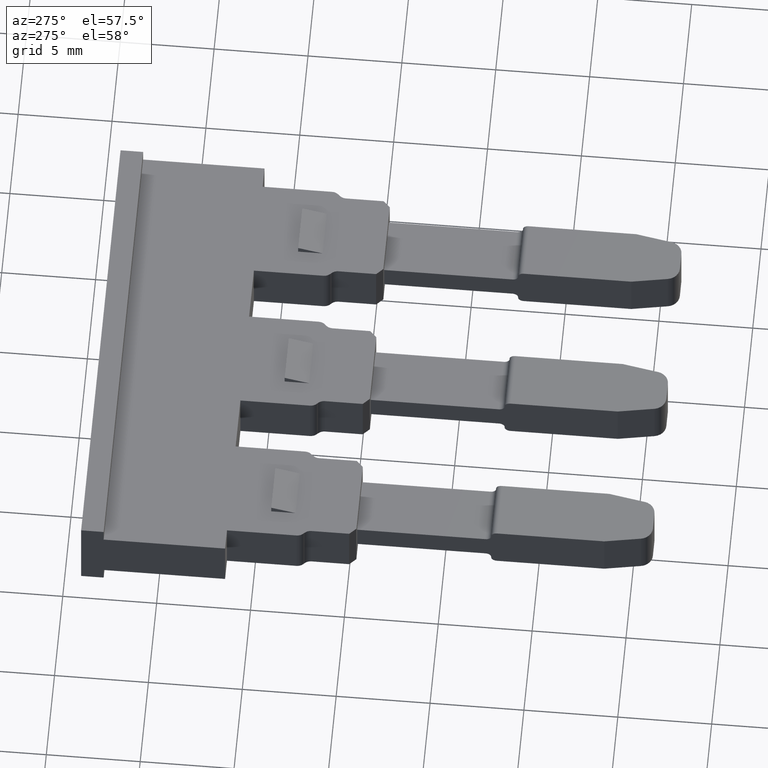
[diagram: clean part render]
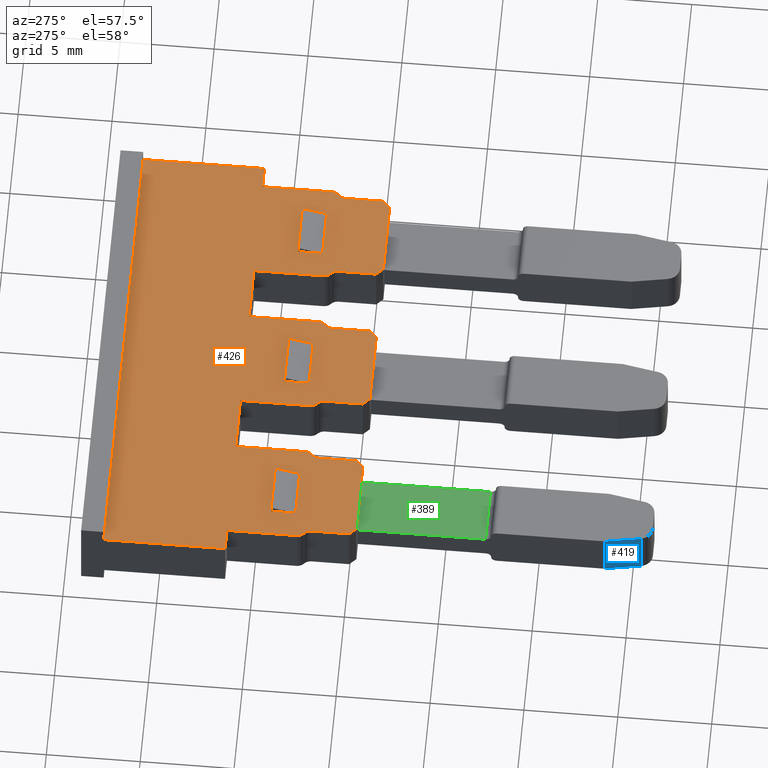
[diagram: same view with three faces highlighted in distinct colors, each labeled with its STEP entity id]
A machine part, auxiliary view with three faces highlighted in distinct colors.
Their STEP definitions:

[orange] entity #426 — the highlighted planar face has unit normal (0, 0, 1).
#1 = EDGE_CURVE ( 'NONE', #1506, #1530, #3544, .T. ) ;
#3 = EDGE_CURVE ( 'NONE', #1550, #1549, #646, .T. ) ;
#5 = EDGE_CURVE ( 'NONE', #1500, #1545, #658, .T. ) ;
#6 = EDGE_CURVE ( 'NONE', #1551, #1548, #663, .T. ) ;
#7 = EDGE_CURVE ( 'NONE', #1509, #1551, #668, .T. ) ;
#8 = EDGE_CURVE ( 'NONE', #1502, #1512, #689, .T. ) ;
#9 = EDGE_CURVE ( 'NONE', #1619, #1511, #3552, .T. ) ;
#14 = EDGE_CURVE ( 'NONE', #1518, #1520, #682, .T. ) ;
#17 = EDGE_CURVE ( 'NONE', #1522, #1507, #678, .T. ) ;
#18 = EDGE_CURVE ( 'NONE', #1532, #1535, #698, .T. ) ;
#19 = EDGE_CURVE ( 'NONE', #1544, #1539, #684, .T. ) ;
#20 = EDGE_CURVE ( 'NONE', #1552, #1539, #716, .T. ) ;
#22 = EDGE_CURVE ( 'NONE', #1623, #1618, #704, .T. ) ;
#25 = EDGE_CURVE ( 'NONE', #1497, #1541, #706, .T. ) ;
#30 = EDGE_CURVE ( 'NONE', #1546, #1518, #3608, .T. ) ;
#31 = EDGE_CURVE ( 'NONE', #1507, #1503, #738, .T. ) ;
#33 = EDGE_CURVE ( 'NONE', #1533, #1508, #761, .T. ) ;
#34 = EDGE_CURVE ( 'NONE', #1538, #1548, #727, .T. ) ;
#37 = EDGE_CURVE ( 'NONE', #1531, #1504, #733, .T. ) ;
#38 = EDGE_CURVE ( 'NONE', #1515, #1533, #3576, .T. ) ;
#39 = EDGE_CURVE ( 'NONE', #1538, #1517, #739, .T. ) ;
#41 = EDGE_CURVE ( 'NONE', #1511, #1516, #773, .T. ) ;
#42 = EDGE_CURVE ( 'NONE', #1516, #1509, #3615, .T. ) ;
#43 = EDGE_CURVE ( 'NONE', #1508, #1621, #757, .T. ) ;
#44 = EDGE_CURVE ( 'NONE', #1519, #1542, #3619, .T. ) ;
#45 = EDGE_CURVE ( 'NONE', #1534, #1623, #780, .T. ) ;
#46 = EDGE_CURVE ( 'NONE', #1541, #1505, #775, .T. ) ;
#48 = EDGE_CURVE ( 'NONE', #1517, #1553, #792, .T. ) ;
#49 = EDGE_CURVE ( 'NONE', #1532, #1528, #786, .T. ) ;
#50 = EDGE_CURVE ( 'NONE', #1526, #1534, #787, .T. ) ;
#51 = EDGE_CURVE ( 'NONE', #1513, #1552, #766, .T. ) ;
#53 = EDGE_CURVE ( 'NONE', #1505, #1536, #3571, .T. ) ;
#55 = EDGE_CURVE ( 'NONE', #1542, #1526, #796, .T. ) ;
#56 = EDGE_CURVE ( 'NONE', #1618, #1531, #830, .T. ) ;
#57 = EDGE_CURVE ( 'NONE', #1497, #1503, #809, .T. ) ;
#58 = EDGE_CURVE ( 'NONE', #1520, #1522, #3589, .T. ) ;
#59 = EDGE_CURVE ( 'NONE', #1504, #1546, #847, .T. ) ;
#61 = EDGE_CURVE ( 'NONE', #1553, #1523, #3625, .T. ) ;
#69 = EDGE_CURVE ( 'NONE', #1621, #1619, #866, .T. ) ;
#70 = EDGE_CURVE ( 'NONE', #1535, #1501, #900, .T. ) ;
#75 = EDGE_CURVE ( 'NONE', #1613, #1500, #858, .T. ) ;
#78 = EDGE_CURVE ( 'NONE', #1536, #1515, #890, .T. ) ;
#83 = EDGE_CURVE ( 'NONE', #1529, #1543, #895, .T. ) ;
#84 = EDGE_CURVE ( 'NONE', #1512, #1537, #3634, .T. ) ;
#90 = EDGE_CURVE ( 'NONE', #1543, #1549, #938, .T. ) ;
#91 = EDGE_CURVE ( 'NONE', #1530, #1547, #931, .T. ) ;
#92 = EDGE_CURVE ( 'NONE', #1527, #1499, #3647, .T. ) ;
#97 = EDGE_CURVE ( 'NONE', #1524, #1519, #914, .T. ) ;
#98 = EDGE_CURVE ( 'NONE', #1513, #1544, #942, .T. ) ;
#99 = EDGE_CURVE ( 'NONE', #1547, #1514, #907, .T. ) ;
#103 = EDGE_CURVE ( 'NONE', #1510, #1502, #990, .T. ) ;
#111 = EDGE_CURVE ( 'NONE', #1499, #1510, #986, .T. ) ;
#114 = EDGE_CURVE ( 'NONE', #1528, #1501, #984, .T. ) ;
#117 = EDGE_CURVE ( 'NONE', #1523, #1527, #1026, .T. ) ;
#118 = EDGE_CURVE ( 'NONE', #1529, #1550, #1019, .T. ) ;
#119 = EDGE_CURVE ( 'NONE', #1537, #1506, #1023, .T. ) ;
#122 = EDGE_CURVE ( 'NONE', #1613, #1514, #1032, .T. ) ;
#123 = EDGE_CURVE ( 'NONE', #1545, #1524, #3636, .T. ) ;
#426 = ADVANCED_FACE ( 'NONE', ( #2574, #2573, #2576, #2568 ), #2591, .T. ) ;
#621 = DIRECTION ( 'NONE',  ( -0.0000000000000000000, -1.000000000000000000, -0.0000000000000000000 ) ) ;
#632 = CARTESIAN_POINT ( 'NONE',  ( 1133.544467917465200, 662.9078760720548200, 3.000000000000000400 ) ) ;
#638 = CARTESIAN_POINT ( 'NONE',  ( 1153.494474435155100, 661.9736492477802600, 3.000000000000000000 ) ) ;
#640 = DIRECTION ( 'NONE',  ( 0.0000000000000000000, 1.000000000000000000, -0.0000000000000000000 ) ) ;
#641 = DIRECTION ( 'NONE',  ( -0.0000000000000000000, -0.0000000000000000000, -1.000000000000000000 ) ) ;
#646 = LINE ( 'NONE', #632, #3547 ) ;
#648 = DIRECTION ( 'NONE',  ( -1.000000000000000000, 0.0000000000000000000, 0.0000000000000000000 ) ) ;
#652 = CARTESIAN_POINT ( 'NONE',  ( 1148.394466766061700, 661.9736497164254800, 3.000000000000000000 ) ) ;
#658 = LINE ( 'NONE', #638, #3548 ) ;
#663 = LINE ( 'NONE', #665, #3542 ) ;
#665 = CARTESIAN_POINT ( 'NONE',  ( 1140.694466376607100, 659.9592804752735400, 3.000000000000000000 ) ) ;
#667 = DIRECTION ( 'NONE',  ( 0.7071067811865474600, -0.7071067811865474600, 0.0000000000000000000 ) ) ;
#668 = LINE ( 'NONE', #685, #3549 ) ;
#673 = CARTESIAN_POINT ( 'NONE',  ( 1144.244467917465300, 662.9078760720548200, 3.000000000000000400 ) ) ;
#674 = DIRECTION ( 'NONE',  ( 0.0000000000000000000, 0.0000000000000000000, 1.000000000000000000 ) ) ;
#675 = CARTESIAN_POINT ( 'NONE',  ( 1140.844468432835100, 662.7378632849956800, 3.000000000000000000 ) ) ;
#678 = LINE ( 'NONE', #690, #3536 ) ;
#682 = LINE ( 'NONE', #696, #3539 ) ;
#683 = CARTESIAN_POINT ( 'NONE',  ( 1148.544465770546100, 662.7578673721997100, 3.000000000000000000 ) ) ;
#684 = LINE ( 'NONE', #673, #3554 ) ;
#685 = CARTESIAN_POINT ( 'NONE',  ( 1140.694468933274500, 661.9736497164254800, 3.000000000000000000 ) ) ;
#689 = LINE ( 'NONE', #683, #3551 ) ;
#690 = CARTESIAN_POINT ( 'NONE',  ( 1132.494468933274400, 661.9736497164254800, 3.000000000000000000 ) ) ;
#691 = DIRECTION ( 'NONE',  ( -1.269214834134032900E-006, -0.9999999999991945300, -0.0000000000000000000 ) ) ;
#692 = DIRECTION ( 'NONE',  ( -1.269214834134032900E-006, -0.9999999999991945300, -0.0000000000000000000 ) ) ;
#693 = DIRECTION ( 'NONE',  ( 0.7071156533801817900, -0.7070979088815909600, -0.0000000000000000000 ) ) ;
#696 = CARTESIAN_POINT ( 'NONE',  ( 1132.290914677786500, 662.3843095299471300, 3.000000000000000000 ) ) ;
#697 = DIRECTION ( 'NONE',  ( -1.000000000000000000, 0.0000000000000000000, 0.0000000000000000000 ) ) ;
#698 = LINE ( 'NONE', #699, #3562 ) ;
#699 = CARTESIAN_POINT ( 'NONE',  ( 1152.444467917465300, 664.2078760720547700, 3.000000000000000400 ) ) ;
#703 = CARTESIAN_POINT ( 'NONE',  ( 1141.744467917465300, 662.9078760720548200, 3.000000000000000400 ) ) ;
#704 = LINE ( 'NONE', #710, #3537 ) ;
#705 = DIRECTION ( 'NONE',  ( -1.000000000000000000, 0.0000000000000000000, 0.0000000000000000000 ) ) ;
#706 = LINE ( 'NONE', #709, #3550 ) ;
#708 = DIRECTION ( 'NONE',  ( -0.0000000000000000000, -1.000000000000000000, -0.0000000000000000000 ) ) ;
#709 = CARTESIAN_POINT ( 'NONE',  ( 1136.744471264188200, 659.6092820011524500, 3.000000000000000000 ) ) ;
#710 = CARTESIAN_POINT ( 'NONE',  ( 1136.944468391975100, 672.9078760720548200, 3.000000000000000000 ) ) ;
#712 = DIRECTION ( 'NONE',  ( -1.000000000000000000, 0.0000000000000000000, 0.0000000000000000000 ) ) ;
#714 = DIRECTION ( 'NONE',  ( -1.000000000000000000, -0.0000000000000000000, 0.0000000000000000000 ) ) ;
#716 = LINE ( 'NONE', #703, #3555 ) ;
#719 = DIRECTION ( 'NONE',  ( -1.853939984963251300E-006, -0.9999999999982813700, -0.0000000000000000000 ) ) ;
#720 = CARTESIAN_POINT ( 'NONE',  ( 1136.944468391975100, 666.4412584401425200, 3.000000000000000000 ) ) ;
#722 = DIRECTION ( 'NONE',  ( 0.0000000000000000000, 0.0000000000000000000, 1.000000000000000000 ) ) ;
#727 = LINE ( 'NONE', #729, #3574 ) ;
#729 = CARTESIAN_POINT ( 'NONE',  ( 1158.234848447492800, 659.6092820011524500, 3.000000000000000000 ) ) ;
#731 = CARTESIAN_POINT ( 'NONE',  ( 1132.644468432835100, 662.7378632849956800, 3.000000000000000000 ) ) ;
#733 = LINE ( 'NONE', #720, #3569 ) ;
#736 = DIRECTION ( 'NONE',  ( -1.000000000000000000, -1.259332280444392000E-037, -2.956436511251547900E-061 ) ) ;
#738 = LINE ( 'NONE', #764, #3606 ) ;
#739 = LINE ( 'NONE', #753, #3586 ) ;
#740 = DIRECTION ( 'NONE',  ( 0.7071067811865474600, -0.7071067811865474600, 0.0000000000000000000 ) ) ;
#744 = DIRECTION ( 'NONE',  ( -1.000000000000000000, 0.0000000000000000000, 0.0000000000000000000 ) ) ;
#745 = DIRECTION ( 'NONE',  ( 0.7071067811865474600, 0.7071067811865474600, 0.0000000000000000000 ) ) ;
#747 = DIRECTION ( 'NONE',  ( 1.000000000000000000, 0.0000000000000000000, -0.0000000000000000000 ) ) ;
#751 = DIRECTION ( 'NONE',  ( 0.0000000000000000000, 1.000000000000000000, -0.0000000000000000000 ) ) ;
#753 = CARTESIAN_POINT ( 'NONE',  ( 1144.944471264188000, 659.6092820011524500, 3.000000000000000000 ) ) ;
#757 = LINE ( 'NONE', #782, #3575 ) ;
#761 = LINE ( 'NONE', #762, #3628 ) ;
#762 = CARTESIAN_POINT ( 'NONE',  ( 1137.444466905616100, 662.7578707420599400, 3.000000000000000000 ) ) ;
#764 = CARTESIAN_POINT ( 'NONE',  ( 1132.494466376607300, 659.9592804752735400, 3.000000000000000000 ) ) ;
#765 = DIRECTION ( 'NONE',  ( 1.000000000000000000, 0.0000000000000000000, -0.0000000000000000000 ) ) ;
#766 = LINE ( 'NONE', #790, #3623 ) ;
#767 = DIRECTION ( 'NONE',  ( 0.0000000000000000000, 1.000000000000000000, -0.0000000000000000000 ) ) ;
#768 = DIRECTION ( 'NONE',  ( 0.0000000000000000000, 1.000000000000000000, -0.0000000000000000000 ) ) ;
#769 = DIRECTION ( 'NONE',  ( 0.0000000000000000000, 1.000000000000000000, -0.0000000000000000000 ) ) ;
#770 = DIRECTION ( 'NONE',  ( -0.0000000000000000000, -1.000000000000000000, -0.0000000000000000000 ) ) ;
#771 = DIRECTION ( 'NONE',  ( 0.0000000000000000000, 0.0000000000000000000, 1.000000000000000000 ) ) ;
#772 = DIRECTION ( 'NONE',  ( 0.7071067811865474600, 0.7071067811865474600, 0.0000000000000000000 ) ) ;
#773 = LINE ( 'NONE', #776, #3588 ) ;
#774 = DIRECTION ( 'NONE',  ( 0.0000000000000000000, 0.0000000000000000000, 1.000000000000000000 ) ) ;
#775 = LINE ( 'NONE', #784, #3572 ) ;
#776 = CARTESIAN_POINT ( 'NONE',  ( 1140.490914677786300, 662.3843095299471300, 3.000000000000000000 ) ) ;
#777 = CARTESIAN_POINT ( 'NONE',  ( 1154.994472239529600, 674.1078760720547500, 3.000000000000000000 ) ) ;
#778 = CARTESIAN_POINT ( 'NONE',  ( 1136.944468391975100, 662.7378638201009800, 3.000000000000000000 ) ) ;
#779 = DIRECTION ( 'NONE',  ( -1.000000000000000000, 0.0000000000000000000, 0.0000000000000000000 ) ) ;
#780 = LINE ( 'NONE', #777, #3590 ) ;
#781 = CARTESIAN_POINT ( 'NONE',  ( 1145.294469738309100, 659.9592804752735400, 3.000000000000000000 ) ) ;
#782 = CARTESIAN_POINT ( 'NONE',  ( 1140.344472599332200, 666.4412584401425200, 3.000000000000000000 ) ) ;
#783 = CARTESIAN_POINT ( 'NONE',  ( 1153.344472601745100, 662.7378623612644300, 3.000000000000000000 ) ) ;
#784 = CARTESIAN_POINT ( 'NONE',  ( 1137.094469738309300, 659.9592804752735400, 3.000000000000000000 ) ) ;
#786 = LINE ( 'NONE', #799, #3581 ) ;
#787 = LINE ( 'NONE', #788, #3598 ) ;
#788 = CARTESIAN_POINT ( 'NONE',  ( 1145.144468391975100, 666.4412575163982000, 3.000000000000000000 ) ) ;
#789 = DIRECTION ( 'NONE',  ( 1.000000000000000000, 0.0000000000000000000, -0.0000000000000000000 ) ) ;
#790 = CARTESIAN_POINT ( 'NONE',  ( 1144.244467917465300, 664.2078760720547700, 3.000000000000000400 ) ) ;
#791 = DIRECTION ( 'NONE',  ( -0.0000000000000000000, -0.0000000000000000000, -1.000000000000000000 ) ) ;
#792 = LINE ( 'NONE', #781, #3585 ) ;
#793 = DIRECTION ( 'NONE',  ( -1.000000000000000000, 0.0000000000000000000, 0.0000000000000000000 ) ) ;
#796 = LINE ( 'NONE', #801, #3617 ) ;
#799 = CARTESIAN_POINT ( 'NONE',  ( 1152.444467917465300, 662.9078760720548200, 3.000000000000000400 ) ) ;
#801 = CARTESIAN_POINT ( 'NONE',  ( 1153.844475124394400, 666.4412575163982000, 3.000000000000000000 ) ) ;
#804 = DIRECTION ( 'NONE',  ( 0.7071156533801817900, -0.7070979088815909600, -0.0000000000000000000 ) ) ;
#805 = DIRECTION ( 'NONE',  ( -1.000000000000000000, 0.0000000000000000000, 0.0000000000000000000 ) ) ;
#806 = DIRECTION ( 'NONE',  ( -1.000000000000000000, 0.0000000000000000000, 0.0000000000000000000 ) ) ;
#808 = CARTESIAN_POINT ( 'NONE',  ( 1140.194468426628200, 661.9736497164254800, 3.000000000000000000 ) ) ;
#809 = LINE ( 'NONE', #853, #3584 ) ;
#812 = DIRECTION ( 'NONE',  ( -0.0000000000000000000, -0.0000000000000000000, -1.000000000000000000 ) ) ;
#815 = CARTESIAN_POINT ( 'NONE',  ( 1132.144467917465400, 666.4412584401425200, 3.000000000000000000 ) ) ;
#817 = DIRECTION ( 'NONE',  ( -0.0000000000000000000, -1.000000000000000000, -0.0000000000000000000 ) ) ;
#818 = DIRECTION ( 'NONE',  ( -0.0000000000000000000, -1.000000000000000000, -0.0000000000000000000 ) ) ;
#822 = CARTESIAN_POINT ( 'NONE',  ( 1137.594469738307700, 661.9736505214604000, 3.000000000000000000 ) ) ;
#823 = CARTESIAN_POINT ( 'NONE',  ( 1131.994468426628400, 661.9736497164254800, 3.000000000000000000 ) ) ;
#824 = DIRECTION ( 'NONE',  ( -0.0000000000000000000, -0.0000000000000000000, -1.000000000000000000 ) ) ;
#827 = DIRECTION ( 'NONE',  ( 0.0000000000000000000, 1.000000000000000000, -0.0000000000000000000 ) ) ;
#829 = DIRECTION ( 'NONE',  ( -1.000000000000000000, 0.0000000000000000000, 0.0000000000000000000 ) ) ;
#830 = LINE ( 'NONE', #845, #3579 ) ;
#832 = DIRECTION ( 'NONE',  ( -1.000000000000000000, 0.0000000000000000000, 0.0000000000000000000 ) ) ;
#833 = CARTESIAN_POINT ( 'NONE',  ( 1145.794469738307500, 661.9736505214604000, 3.000000000000000000 ) ) ;
#835 = DIRECTION ( 'NONE',  ( -1.000000000000000000, -1.259332280444392000E-037, -2.956436511251547900E-061 ) ) ;
#836 = DIRECTION ( 'NONE',  ( -1.000000000000000000, 0.0000000000000000000, 0.0000000000000000000 ) ) ;
#845 = CARTESIAN_POINT ( 'NONE',  ( 1130.994470802330200, 666.4412584401425200, 3.000000000000000000 ) ) ;
#847 = LINE ( 'NONE', #815, #3592 ) ;
#848 = DIRECTION ( 'NONE',  ( -0.0000000000000000000, -0.0000000000000000000, -1.000000000000000000 ) ) ;
#853 = CARTESIAN_POINT ( 'NONE',  ( 1150.034848447493000, 659.6092820011524500, 3.000000000000000000 ) ) ;
#857 = DIRECTION ( 'NONE',  ( -0.0000000000000000000, -1.000000000000000000, -0.0000000000000000000 ) ) ;
#858 = LINE ( 'NONE', #868, #3624 ) ;
#862 = DIRECTION ( 'NONE',  ( -0.0000000000000000000, -1.000000000000000000, -0.0000000000000000000 ) ) ;
#866 = LINE ( 'NONE', #888, #3607 ) ;
#868 = CARTESIAN_POINT ( 'NONE',  ( 1153.144475961034000, 659.6092820011524500, 3.000000000000000000 ) ) ;
#870 = DIRECTION ( 'NONE',  ( 0.7071067811865474600, 0.7071067811865474600, 0.0000000000000000000 ) ) ;
#872 = CARTESIAN_POINT ( 'NONE',  ( 1136.044467917465200, 662.9078760720548200, 3.000000000000000400 ) ) ;
#873 = CARTESIAN_POINT ( 'NONE',  ( 1137.240915542681300, 662.3272031070188200, 3.000000000000000000 ) ) ;
#874 = CARTESIAN_POINT ( 'NONE',  ( 1149.944467917465300, 662.9078760720548200, 3.000000000000000400 ) ) ;
#878 = DIRECTION ( 'NONE',  ( 0.7070870645724811600, 0.7071264972508609600, -0.0000000000000000000 ) ) ;
#888 = CARTESIAN_POINT ( 'NONE',  ( 1140.344467917465200, 666.4412584401425200, 3.000000000000000000 ) ) ;
#889 = DIRECTION ( 'NONE',  ( -0.0000000000000000000, -1.000000000000000000, -0.0000000000000000000 ) ) ;
#890 = LINE ( 'NONE', #873, #3626 ) ;
#895 = LINE ( 'NONE', #872, #3667 ) ;
#900 = LINE ( 'NONE', #874, #3605 ) ;
#902 = DIRECTION ( 'NONE',  ( -0.0000000000000000000, -1.000000000000000000, -0.0000000000000000000 ) ) ;
#907 = LINE ( 'NONE', #948, #3683 ) ;
#908 = CARTESIAN_POINT ( 'NONE',  ( 1149.044463937493400, 662.7378604502047200, 3.000000000000000000 ) ) ;
#909 = DIRECTION ( 'NONE',  ( -1.000000000000000000, -2.220454189456208500E-013, 0.0000000000000000000 ) ) ;
#911 = DIRECTION ( 'NONE',  ( -1.000000000000000000, 0.0000000000000000000, 0.0000000000000000000 ) ) ;
#914 = LINE ( 'NONE', #928, #3661 ) ;
#915 = CARTESIAN_POINT ( 'NONE',  ( 1148.894471073453100, 659.9592804752735400, 3.000000000000000000 ) ) ;
#918 = DIRECTION ( 'NONE',  ( 0.0000000000000000000, 0.0000000000000000000, 1.000000000000000000 ) ) ;
#923 = CARTESIAN_POINT ( 'NONE',  ( 1136.044467917465200, 662.9078760720548200, 3.000000000000000400 ) ) ;
#926 = CARTESIAN_POINT ( 'NONE',  ( 1145.144468391975100, 662.7378638201009800, 3.000000000000000000 ) ) ;
#928 = CARTESIAN_POINT ( 'NONE',  ( 1153.698028993211400, 662.3843084039157200, 3.000000000000000000 ) ) ;
#931 = LINE ( 'NONE', #915, #3668 ) ;
#933 = DIRECTION ( 'NONE',  ( -1.000000000000000000, 0.0000000000000000000, 0.0000000000000000000 ) ) ;
#936 = DIRECTION ( 'NONE',  ( 1.062455896942234500E-006, -0.9999999999994355600, -0.0000000000000000000 ) ) ;
#937 = DIRECTION ( 'NONE',  ( 0.0000000000000000000, 0.0000000000000000000, 1.000000000000000000 ) ) ;
#938 = LINE ( 'NONE', #923, #3641 ) ;
#940 = DIRECTION ( 'NONE',  ( 0.7071161435833248600, 0.7070974186658064400, -0.0000000000000000000 ) ) ;
#942 = LINE ( 'NONE', #947, #3643 ) ;
#947 = CARTESIAN_POINT ( 'NONE',  ( 1144.244467917465300, 662.9078760720548200, 3.000000000000000400 ) ) ;
#948 = CARTESIAN_POINT ( 'NONE',  ( 1148.894471073453100, 659.9592804752735400, 3.000000000000000000 ) ) ;
#950 = CARTESIAN_POINT ( 'NONE',  ( 1145.644466905616100, 662.7578707420599400, 3.000000000000000000 ) ) ;
#973 = DIRECTION ( 'NONE',  ( 1.000000000000000000, 0.0000000000000000000, -0.0000000000000000000 ) ) ;
#976 = CARTESIAN_POINT ( 'NONE',  ( 1148.544472599332000, 666.4412584401425200, 3.000000000000000000 ) ) ;
#978 = DIRECTION ( 'NONE',  ( 0.0000000000000000000, 1.000000000000000000, -0.0000000000000000000 ) ) ;
#982 = DIRECTION ( 'NONE',  ( 0.7071067811865474600, -0.7071067811865474600, 0.0000000000000000000 ) ) ;
#984 = LINE ( 'NONE', #985, #3639 ) ;
#985 = CARTESIAN_POINT ( 'NONE',  ( 1152.444467917465300, 662.9078760720548200, 3.000000000000000400 ) ) ;
#986 = LINE ( 'NONE', #950, #3663 ) ;
#990 = LINE ( 'NONE', #976, #3664 ) ;
#995 = CARTESIAN_POINT ( 'NONE',  ( 1136.044467917465200, 664.2078760720547700, 3.000000000000000400 ) ) ;
#998 = DIRECTION ( 'NONE',  ( -1.000000000000000000, 0.0000000000000000000, 0.0000000000000000000 ) ) ;
#1003 = DIRECTION ( 'NONE',  ( -1.000000000000000000, 0.0000000000000000000, 0.0000000000000000000 ) ) ;
#1004 = DIRECTION ( 'NONE',  ( 0.7071447321500710100, -0.7070688281860574300, -0.0000000000000000000 ) ) ;
#1009 = DIRECTION ( 'NONE',  ( -1.000000000000000000, 0.0000000000000000000, 0.0000000000000000000 ) ) ;
#1013 = CARTESIAN_POINT ( 'NONE',  ( 1145.440915542681300, 662.3272031070188200, 3.000000000000000000 ) ) ;
#1015 = DIRECTION ( 'NONE',  ( -1.000000000000000000, -1.259332280444392000E-037, -2.956436511251547900E-061 ) ) ;
#1018 = DIRECTION ( 'NONE',  ( -0.0000000000000000000, -0.0000000000000000000, -1.000000000000000000 ) ) ;
#1019 = LINE ( 'NONE', #995, #3674 ) ;
#1020 = CARTESIAN_POINT ( 'NONE',  ( 1148.748018761588600, 662.3272075669629000, 3.000000000000000000 ) ) ;
#1022 = DIRECTION ( 'NONE',  ( 0.7070870645724811600, 0.7071264972508609600, -0.0000000000000000000 ) ) ;
#1023 = LINE ( 'NONE', #1020, #3687 ) ;
#1024 = CARTESIAN_POINT ( 'NONE',  ( 1153.994471684214700, 661.9736497164279900, 3.000000000000000000 ) ) ;
#1026 = LINE ( 'NONE', #1013, #3642 ) ;
#1027 = CARTESIAN_POINT ( 'NONE',  ( 1158.234848447492800, 659.6092820011524500, 3.000000000000000000 ) ) ;
#1032 = LINE ( 'NONE', #1027, #3690 ) ;
#1497 = VERTEX_POINT ( 'NONE', #2973 ) ;
#1499 = VERTEX_POINT ( 'NONE', #2968 ) ;
#1500 = VERTEX_POINT ( 'NONE', #3017 ) ;
#1501 = VERTEX_POINT ( 'NONE', #2969 ) ;
#1502 = VERTEX_POINT ( 'NONE', #3005 ) ;
#1503 = VERTEX_POINT ( 'NONE', #2997 ) ;
#1504 = VERTEX_POINT ( 'NONE', #2981 ) ;
#1505 = VERTEX_POINT ( 'NONE', #2972 ) ;
#1506 = VERTEX_POINT ( 'NONE', #3002 ) ;
#1507 = VERTEX_POINT ( 'NONE', #2988 ) ;
#1508 = VERTEX_POINT ( 'NONE', #2982 ) ;
#1509 = VERTEX_POINT ( 'NONE', #2994 ) ;
#1510 = VERTEX_POINT ( 'NONE', #2991 ) ;
#1511 = VERTEX_POINT ( 'NONE', #2983 ) ;
#1512 = VERTEX_POINT ( 'NONE', #2985 ) ;
#1513 = VERTEX_POINT ( 'NONE', #2986 ) ;
#1514 = VERTEX_POINT ( 'NONE', #2987 ) ;
#1515 = VERTEX_POINT ( 'NONE', #2989 ) ;
#1516 = VERTEX_POINT ( 'NONE', #2993 ) ;
#1517 = VERTEX_POINT ( 'NONE', #3018 ) ;
#1518 = VERTEX_POINT ( 'NONE', #2999 ) ;
#1519 = VERTEX_POINT ( 'NONE', #2990 ) ;
#1520 = VERTEX_POINT ( 'NONE', #3000 ) ;
#1522 = VERTEX_POINT ( 'NONE', #3008 ) ;
#1523 = VERTEX_POINT ( 'NONE', #3009 ) ;
#1524 = VERTEX_POINT ( 'NONE', #3020 ) ;
#1526 = VERTEX_POINT ( 'NONE', #2958 ) ;
#1527 = VERTEX_POINT ( 'NONE', #3037 ) ;
#1528 = VERTEX_POINT ( 'NONE', #3042 ) ;
#1529 = VERTEX_POINT ( 'NONE', #3066 ) ;
#1530 = VERTEX_POINT ( 'NONE', #3039 ) ;
#1531 = VERTEX_POINT ( 'NONE', #3049 ) ;
#1532 = VERTEX_POINT ( 'NONE', #3045 ) ;
#1533 = VERTEX_POINT ( 'NONE', #3029 ) ;
#1534 = VERTEX_POINT ( 'NONE', #3047 ) ;
#1535 = VERTEX_POINT ( 'NONE', #3025 ) ;
#1536 = VERTEX_POINT ( 'NONE', #3052 ) ;
#1537 = VERTEX_POINT ( 'NONE', #3054 ) ;
#1538 = VERTEX_POINT ( 'NONE', #3031 ) ;
#1539 = VERTEX_POINT ( 'NONE', #3034 ) ;
#1541 = VERTEX_POINT ( 'NONE', #3050 ) ;
#1542 = VERTEX_POINT ( 'NONE', #3026 ) ;
#1543 = VERTEX_POINT ( 'NONE', #3069 ) ;
#1544 = VERTEX_POINT ( 'NONE', #3030 ) ;
#1545 = VERTEX_POINT ( 'NONE', #3043 ) ;
#1546 = VERTEX_POINT ( 'NONE', #3063 ) ;
#1547 = VERTEX_POINT ( 'NONE', #3070 ) ;
#1548 = VERTEX_POINT ( 'NONE', #3046 ) ;
#1549 = VERTEX_POINT ( 'NONE', #3035 ) ;
#1550 = VERTEX_POINT ( 'NONE', #3032 ) ;
#1551 = VERTEX_POINT ( 'NONE', #3033 ) ;
#1552 = VERTEX_POINT ( 'NONE', #3040 ) ;
#1553 = VERTEX_POINT ( 'NONE', #3038 ) ;
#1613 = VERTEX_POINT ( 'NONE', #3023 ) ;
#1618 = VERTEX_POINT ( 'NONE', #3041 ) ;
#1619 = VERTEX_POINT ( 'NONE', #3048 ) ;
#1621 = VERTEX_POINT ( 'NONE', #3056 ) ;
#1623 = VERTEX_POINT ( 'NONE', #3058 ) ;
#1633 = ORIENTED_EDGE ( 'NONE', *, *, #17, .T. ) ;
#1634 = ORIENTED_EDGE ( 'NONE', *, *, #57, .F. ) ;
#1636 = ORIENTED_EDGE ( 'NONE', *, *, #56, .T. ) ;
#1638 = ORIENTED_EDGE ( 'NONE', *, *, #33, .T. ) ;
#1639 = ORIENTED_EDGE ( 'NONE', *, *, #39, .T. ) ;
#1640 = ORIENTED_EDGE ( 'NONE', *, *, #22, .T. ) ;
#1641 = ORIENTED_EDGE ( 'NONE', *, *, #25, .T. ) ;
#1643 = ORIENTED_EDGE ( 'NONE', *, *, #78, .T. ) ;
#1644 = ORIENTED_EDGE ( 'NONE', *, *, #42, .T. ) ;
#1645 = ORIENTED_EDGE ( 'NONE', *, *, #53, .T. ) ;
#1647 = ORIENTED_EDGE ( 'NONE', *, *, #14, .T. ) ;
#1648 = ORIENTED_EDGE ( 'NONE', *, *, #31, .T. ) ;
#1649 = ORIENTED_EDGE ( 'NONE', *, *, #58, .T. ) ;
#1650 = ORIENTED_EDGE ( 'NONE', *, *, #43, .T. ) ;
#1651 = ORIENTED_EDGE ( 'NONE', *, *, #37, .T. ) ;
#1652 = ORIENTED_EDGE ( 'NONE', *, *, #59, .T. ) ;
#1654 = ORIENTED_EDGE ( 'NONE', *, *, #92, .T. ) ;
#1656 = ORIENTED_EDGE ( 'NONE', *, *, #38, .T. ) ;
#1657 = ORIENTED_EDGE ( 'NONE', *, *, #34, .F. ) ;
#1658 = ORIENTED_EDGE ( 'NONE', *, *, #18, .F. ) ;
#1660 = ORIENTED_EDGE ( 'NONE', *, *, #7, .T. ) ;
#1661 = ORIENTED_EDGE ( 'NONE', *, *, #114, .T. ) ;
#1663 = ORIENTED_EDGE ( 'NONE', *, *, #41, .T. ) ;
#1664 = ORIENTED_EDGE ( 'NONE', *, *, #1, .T. ) ;
#1665 = ORIENTED_EDGE ( 'NONE', *, *, #8, .T. ) ;
#1667 = ORIENTED_EDGE ( 'NONE', *, *, #48, .T. ) ;
#1668 = ORIENTED_EDGE ( 'NONE', *, *, #9, .T. ) ;
#1669 = ORIENTED_EDGE ( 'NONE', *, *, #117, .T. ) ;
#1670 = ORIENTED_EDGE ( 'NONE', *, *, #91, .T. ) ;
#1671 = ORIENTED_EDGE ( 'NONE', *, *, #5, .T. ) ;
#1672 = ORIENTED_EDGE ( 'NONE', *, *, #97, .T. ) ;
#1673 = ORIENTED_EDGE ( 'NONE', *, *, #55, .T. ) ;
#1674 = ORIENTED_EDGE ( 'NONE', *, *, #103, .T. ) ;
#1675 = ORIENTED_EDGE ( 'NONE', *, *, #75, .T. ) ;
#1676 = ORIENTED_EDGE ( 'NONE', *, *, #119, .T. ) ;
#1679 = ORIENTED_EDGE ( 'NONE', *, *, #123, .T. ) ;
#1680 = ORIENTED_EDGE ( 'NONE', *, *, #111, .T. ) ;
#1681 = ORIENTED_EDGE ( 'NONE', *, *, #44, .T. ) ;
#1682 = ORIENTED_EDGE ( 'NONE', *, *, #45, .T. ) ;
#1683 = ORIENTED_EDGE ( 'NONE', *, *, #84, .T. ) ;
#1684 = ORIENTED_EDGE ( 'NONE', *, *, #50, .T. ) ;
#1685 = ORIENTED_EDGE ( 'NONE', *, *, #70, .F. ) ;
#1686 = ORIENTED_EDGE ( 'NONE', *, *, #122, .F. ) ;
#1687 = ORIENTED_EDGE ( 'NONE', *, *, #69, .T. ) ;
#1688 = ORIENTED_EDGE ( 'NONE', *, *, #61, .T. ) ;
#1689 = ORIENTED_EDGE ( 'NONE', *, *, #49, .T. ) ;
#1690 = ORIENTED_EDGE ( 'NONE', *, *, #51, .F. ) ;
#1691 = ORIENTED_EDGE ( 'NONE', *, *, #46, .T. ) ;
#1693 = ORIENTED_EDGE ( 'NONE', *, *, #30, .T. ) ;
#1695 = ORIENTED_EDGE ( 'NONE', *, *, #90, .T. ) ;
#1697 = ORIENTED_EDGE ( 'NONE', *, *, #6, .T. ) ;
#1699 = ORIENTED_EDGE ( 'NONE', *, *, #99, .T. ) ;
#1712 = ORIENTED_EDGE ( 'NONE', *, *, #98, .T. ) ;
#1720 = ORIENTED_EDGE ( 'NONE', *, *, #3, .F. ) ;
#1726 = ORIENTED_EDGE ( 'NONE', *, *, #118, .F. ) ;
#1735 = ORIENTED_EDGE ( 'NONE', *, *, #20, .F. ) ;
#1754 = ORIENTED_EDGE ( 'NONE', *, *, #19, .T. ) ;
#1756 = ORIENTED_EDGE ( 'NONE', *, *, #83, .T. ) ;
#2301 = EDGE_LOOP ( 'NONE', ( #1726, #1756, #1695, #1720 ) ) ;
#2313 = EDGE_LOOP ( 'NONE', ( #1689, #1661, #1685, #1658 ) ) ;
#2320 = EDGE_LOOP ( 'NONE', ( #1640, #1636, #1651, #1652, #1693, #1647, #1649, #1633, #1648, #1634, #1641, #1691, #1645, #1643, #1656, #1638, #1650, #1687, #1668, #1663, #1644, #1660, #1697, #1657, #1639, #1667, #1688, #1669, #1654, #1680, #1674, #1665, #1683, #1676, #1664, #1670, #1699, #1686, #1675, #1671, #1679, #1672, #1681, #1673, #1684, #1682 ) ) ;
#2336 = EDGE_LOOP ( 'NONE', ( #1690, #1712, #1754, #1735 ) ) ;
#2565 = DIRECTION ( 'NONE',  ( 1.000000000000000000, 0.0000000000000000000, -0.0000000000000000000 ) ) ;
#2568 = FACE_BOUND ( 'NONE', #2301, .T. ) ;
#2573 = FACE_BOUND ( 'NONE', #2313, .T. ) ;
#2574 = FACE_OUTER_BOUND ( 'NONE', #2320, .T. ) ;
#2576 = FACE_BOUND ( 'NONE', #2336, .T. ) ;
#2582 = DIRECTION ( 'NONE',  ( 0.0000000000000000000, 0.0000000000000000000, 1.000000000000000000 ) ) ;
#2591 = PLANE ( 'NONE',  #4019 ) ;
#2613 = CARTESIAN_POINT ( 'NONE',  ( 1136.944468391975100, 662.7578638201010800, 3.000000000000000000 ) ) ;
#2958 = CARTESIAN_POINT ( 'NONE',  ( 1153.844475124394400, 666.4412575163982000, 3.000000000000000400 ) ) ;
#2968 = CARTESIAN_POINT ( 'NONE',  ( 1145.644466905616100, 662.7378672810804100, 3.000000000000000000 ) ) ;
#2969 = CARTESIAN_POINT ( 'NONE',  ( 1149.944467917465300, 662.9078760720548200, 3.000000000000000400 ) ) ;
#2972 = CARTESIAN_POINT ( 'NONE',  ( 1137.094469738309300, 661.9736498846202700, 3.000000000000000000 ) ) ;
#2973 = CARTESIAN_POINT ( 'NONE',  ( 1136.744471264188200, 659.6092820011524500, 3.000000000000000000 ) ) ;
#2981 = CARTESIAN_POINT ( 'NONE',  ( 1132.144467917465400, 666.4412584401425200, 3.000000000000000400 ) ) ;
#2982 = CARTESIAN_POINT ( 'NONE',  ( 1137.444466905616100, 666.4412584401425200, 3.000000000000000400 ) ) ;
#2983 = CARTESIAN_POINT ( 'NONE',  ( 1140.490916895879100, 662.3843073119102200, 3.000000000000000000 ) ) ;
#2985 = CARTESIAN_POINT ( 'NONE',  ( 1148.544465751977200, 662.7378609136880000, 3.000000000000000000 ) ) ;
#2986 = CARTESIAN_POINT ( 'NONE',  ( 1144.244467917465300, 664.2078760720547700, 3.000000000000000000 ) ) ;
#2987 = CARTESIAN_POINT ( 'NONE',  ( 1149.244469547574200, 659.6092820011524500, 3.000000000000000000 ) ) ;
#2988 = CARTESIAN_POINT ( 'NONE',  ( 1132.494467228829800, 659.9592796230510900, 3.000000000000000400 ) ) ;
#2989 = CARTESIAN_POINT ( 'NONE',  ( 1137.298019600217200, 662.3843103491215100, 3.000000000000000000 ) ) ;
#2990 = CARTESIAN_POINT ( 'NONE',  ( 1153.698026633855800, 662.3843060446221200, 3.000000000000000000 ) ) ;
#2991 = CARTESIAN_POINT ( 'NONE',  ( 1145.644466905616100, 666.4412584401425200, 3.000000000000000400 ) ) ;
#2993 = CARTESIAN_POINT ( 'NONE',  ( 1140.548017319408200, 662.3272083212701800, 3.000000000000000000 ) ) ;
#2994 = CARTESIAN_POINT ( 'NONE',  ( 1140.694468933274000, 661.9736493991215400, 3.000000000000000000 ) ) ;
#2997 = CARTESIAN_POINT ( 'NONE',  ( 1132.844464850728400, 659.6092820011524500, 3.000000000000000000 ) ) ;
#2999 = CARTESIAN_POINT ( 'NONE',  ( 1132.290916895879000, 662.3843073119102200, 3.000000000000000000 ) ) ;
#3000 = CARTESIAN_POINT ( 'NONE',  ( 1132.348017319408200, 662.3272083212701800, 3.000000000000000000 ) ) ;
#3002 = CARTESIAN_POINT ( 'NONE',  ( 1148.748018761588600, 662.3272075669629000, 3.000000000000000000 ) ) ;
#3005 = CARTESIAN_POINT ( 'NONE',  ( 1148.544472599332000, 666.4412584401425200, 3.000000000000000400 ) ) ;
#3008 = CARTESIAN_POINT ( 'NONE',  ( 1132.494468933274000, 661.9736493991215400, 3.000000000000000000 ) ) ;
#3009 = CARTESIAN_POINT ( 'NONE',  ( 1145.440915542681300, 662.3272031070188200, 3.000000000000000000 ) ) ;
#3017 = CARTESIAN_POINT ( 'NONE',  ( 1153.494474435155100, 659.9592804752735400, 3.000000000000000400 ) ) ;
#3018 = CARTESIAN_POINT ( 'NONE',  ( 1145.294469738309100, 659.9592804752735400, 3.000000000000000400 ) ) ;
#3020 = CARTESIAN_POINT ( 'NONE',  ( 1153.640922579462800, 662.3272035023839000, 3.000000000000000000 ) ) ;
#3023 = CARTESIAN_POINT ( 'NONE',  ( 1153.144475961034000, 659.6092820011524500, 3.000000000000000000 ) ) ;
#3025 = CARTESIAN_POINT ( 'NONE',  ( 1149.944467917465300, 664.2078760720547700, 3.000000000000000000 ) ) ;
#3026 = CARTESIAN_POINT ( 'NONE',  ( 1153.844475124394400, 662.7378658222389700, 3.000000000000000000 ) ) ;
#3029 = CARTESIAN_POINT ( 'NONE',  ( 1137.444466905616100, 662.7378672810804100, 3.000000000000000000 ) ) ;
#3030 = CARTESIAN_POINT ( 'NONE',  ( 1144.244467917465300, 662.9078760720548200, 3.000000000000000000 ) ) ;
#3031 = CARTESIAN_POINT ( 'NONE',  ( 1144.944471264188000, 659.6092820011524500, 3.000000000000000000 ) ) ;
#3032 = CARTESIAN_POINT ( 'NONE',  ( 1133.544467917465200, 664.2078760720547700, 3.000000000000000000 ) ) ;
#3033 = CARTESIAN_POINT ( 'NONE',  ( 1140.694467228829800, 659.9592796230510900, 3.000000000000000400 ) ) ;
#3034 = CARTESIAN_POINT ( 'NONE',  ( 1141.744467917465300, 662.9078760720548200, 3.000000000000000400 ) ) ;
#3035 = CARTESIAN_POINT ( 'NONE',  ( 1133.544467917465200, 662.9078760720548200, 3.000000000000000400 ) ) ;
#3037 = CARTESIAN_POINT ( 'NONE',  ( 1145.498019600217000, 662.3843103491215100, 3.000000000000000000 ) ) ;
#3038 = CARTESIAN_POINT ( 'NONE',  ( 1145.294469738309100, 661.9736498846202700, 3.000000000000000000 ) ) ;
#3039 = CARTESIAN_POINT ( 'NONE',  ( 1148.894468933274300, 661.9736499820405700, 3.000000000000000000 ) ) ;
#3040 = CARTESIAN_POINT ( 'NONE',  ( 1141.744467917465300, 664.2078760720547700, 3.000000000000000000 ) ) ;
#3041 = CARTESIAN_POINT ( 'NONE',  ( 1130.994470802330200, 672.9078760720548200, 3.000000000000000000 ) ) ;
#3042 = CARTESIAN_POINT ( 'NONE',  ( 1152.444467917465300, 662.9078760720548200, 3.000000000000000400 ) ) ;
#3043 = CARTESIAN_POINT ( 'NONE',  ( 1153.494474435155100, 661.9736494821041800, 3.000000000000000000 ) ) ;
#3045 = CARTESIAN_POINT ( 'NONE',  ( 1152.444467917465300, 664.2078760720547700, 3.000000000000000400 ) ) ;
#3046 = CARTESIAN_POINT ( 'NONE',  ( 1141.044464850728200, 659.6092820011524500, 3.000000000000000000 ) ) ;
#3047 = CARTESIAN_POINT ( 'NONE',  ( 1154.994472239529600, 666.4412575163982000, 3.000000000000000000 ) ) ;
#3048 = CARTESIAN_POINT ( 'NONE',  ( 1140.344467917441300, 662.7378632849956800, 3.000000000000000000 ) ) ;
#3049 = CARTESIAN_POINT ( 'NONE',  ( 1130.994470802330200, 666.4412584401425200, 3.000000000000000000 ) ) ;
#3050 = CARTESIAN_POINT ( 'NONE',  ( 1137.094469738309300, 659.9592804752735400, 3.000000000000000400 ) ) ;
#3052 = CARTESIAN_POINT ( 'NONE',  ( 1137.240915542681300, 662.3272031070188200, 3.000000000000000000 ) ) ;
#3054 = CARTESIAN_POINT ( 'NONE',  ( 1148.690911843030100, 662.3843083557416100, 3.000000000000000000 ) ) ;
#3056 = CARTESIAN_POINT ( 'NONE',  ( 1140.344467917465200, 666.4412584401425200, 3.000000000000000000 ) ) ;
#3058 = CARTESIAN_POINT ( 'NONE',  ( 1154.994472239529600, 672.9078760720548200, 3.000000000000000000 ) ) ;
#3063 = CARTESIAN_POINT ( 'NONE',  ( 1132.144467917441300, 662.7378632849956800, 3.000000000000000000 ) ) ;
#3066 = CARTESIAN_POINT ( 'NONE',  ( 1136.044467917465200, 664.2078760720547700, 3.000000000000000000 ) ) ;
#3069 = CARTESIAN_POINT ( 'NONE',  ( 1136.044467917465200, 662.9078760720548200, 3.000000000000000000 ) ) ;
#3070 = CARTESIAN_POINT ( 'NONE',  ( 1148.894470360060500, 659.9592811886663000, 3.000000000000000400 ) ) ;
#3536 = VECTOR ( 'NONE', #692, 1000.000000000000100 ) ;
#3537 = VECTOR ( 'NONE', #714, 1000.000000000000000 ) ;
#3539 = VECTOR ( 'NONE', #693, 1000.000000000000000 ) ;
#3542 = VECTOR ( 'NONE', #667, 1000.000000000000100 ) ;
#3544 = CIRCLE ( 'NONE', #3557, 0.5000021672130206000 ) ;
#3547 = VECTOR ( 'NONE', #621, 1000.000000000000000 ) ;
#3548 = VECTOR ( 'NONE', #640, 1000.000000000000000 ) ;
#3549 = VECTOR ( 'NONE', #691, 1000.000000000000100 ) ;
#3550 = VECTOR ( 'NONE', #745, 1000.000000000000100 ) ;
#3551 = VECTOR ( 'NONE', #719, 1000.000000000000100 ) ;
#3552 = CIRCLE ( 'NONE', #3553, 0.5000005154178754900 ) ;
#3553 = AXIS2_PLACEMENT_3D ( 'NONE', #675, #674, #712 ) ;
#3554 = VECTOR ( 'NONE', #697, 1000.000000000000000 ) ;
#3555 = VECTOR ( 'NONE', #708, 1000.000000000000000 ) ;
#3557 = AXIS2_PLACEMENT_3D ( 'NONE', #652, #641, #648 ) ;
#3562 = VECTOR ( 'NONE', #705, 1000.000000000000000 ) ;
#3569 = VECTOR ( 'NONE', #747, 1000.000000000000000 ) ;
#3570 = AXIS2_PLACEMENT_3D ( 'NONE', #731, #722, #744 ) ;
#3571 = CIRCLE ( 'NONE', #3602, 0.4999999999999449300 ) ;
#3572 = VECTOR ( 'NONE', #769, 1000.000000000000000 ) ;
#3574 = VECTOR ( 'NONE', #736, 1000.000000000000000 ) ;
#3575 = VECTOR ( 'NONE', #765, 1000.000000000000000 ) ;
#3576 = CIRCLE ( 'NONE', #3578, 0.4999985136888707200 ) ;
#3578 = AXIS2_PLACEMENT_3D ( 'NONE', #778, #771, #779 ) ;
#3579 = VECTOR ( 'NONE', #818, 1000.000000000000000 ) ;
#3581 = VECTOR ( 'NONE', #770, 1000.000000000000000 ) ;
#3584 = VECTOR ( 'NONE', #835, 1000.000000000000000 ) ;
#3585 = VECTOR ( 'NONE', #767, 1000.000000000000000 ) ;
#3586 = VECTOR ( 'NONE', #772, 1000.000000000000100 ) ;
#3588 = VECTOR ( 'NONE', #804, 1000.000000000000000 ) ;
#3589 = CIRCLE ( 'NONE', #3622, 0.5000005066464474600 ) ;
#3590 = VECTOR ( 'NONE', #768, 1000.000000000000000 ) ;
#3591 = AXIS2_PLACEMENT_3D ( 'NONE', #783, #774, #806 ) ;
#3592 = VECTOR ( 'NONE', #817, 1000.000000000000000 ) ;
#3598 = VECTOR ( 'NONE', #789, 1000.000000000000000 ) ;
#3602 = AXIS2_PLACEMENT_3D ( 'NONE', #822, #848, #829 ) ;
#3605 = VECTOR ( 'NONE', #862, 1000.000000000000000 ) ;
#3606 = VECTOR ( 'NONE', #740, 1000.000000000000100 ) ;
#3607 = VECTOR ( 'NONE', #857, 1000.000000000000000 ) ;
#3608 = CIRCLE ( 'NONE', #3570, 0.5000005154178754900 ) ;
#3612 = AXIS2_PLACEMENT_3D ( 'NONE', #808, #791, #805 ) ;
#3615 = CIRCLE ( 'NONE', #3612, 0.5000005066464474600 ) ;
#3617 = VECTOR ( 'NONE', #827, 1000.000000000000000 ) ;
#3619 = CIRCLE ( 'NONE', #3591, 0.5000025226975513000 ) ;
#3620 = AXIS2_PLACEMENT_3D ( 'NONE', #833, #812, #832 ) ;
#3622 = AXIS2_PLACEMENT_3D ( 'NONE', #823, #824, #836 ) ;
#3623 = VECTOR ( 'NONE', #793, 1000.000000000000000 ) ;
#3624 = VECTOR ( 'NONE', #870, 1000.000000000000100 ) ;
#3625 = CIRCLE ( 'NONE', #3620, 0.4999999999999449300 ) ;
#3626 = VECTOR ( 'NONE', #878, 1000.000000000000000 ) ;
#3628 = VECTOR ( 'NONE', #751, 1000.000000000000000 ) ;
#3634 = CIRCLE ( 'NONE', #3678, 0.4999981669953079700 ) ;
#3636 = CIRCLE ( 'NONE', #3650, 0.4999972490598025800 ) ;
#3639 = VECTOR ( 'NONE', #1009, 1000.000000000000000 ) ;
#3641 = VECTOR ( 'NONE', #933, 1000.000000000000000 ) ;
#3642 = VECTOR ( 'NONE', #1022, 1000.000000000000000 ) ;
#3643 = VECTOR ( 'NONE', #902, 1000.000000000000000 ) ;
#3647 = CIRCLE ( 'NONE', #3660, 0.4999985136888707200 ) ;
#3650 = AXIS2_PLACEMENT_3D ( 'NONE', #1024, #1018, #998 ) ;
#3660 = AXIS2_PLACEMENT_3D ( 'NONE', #926, #937, #911 ) ;
#3661 = VECTOR ( 'NONE', #940, 1000.000000000000000 ) ;
#3663 = VECTOR ( 'NONE', #978, 1000.000000000000000 ) ;
#3664 = VECTOR ( 'NONE', #973, 1000.000000000000000 ) ;
#3667 = VECTOR ( 'NONE', #889, 1000.000000000000000 ) ;
#3668 = VECTOR ( 'NONE', #936, 1000.000000000000100 ) ;
#3674 = VECTOR ( 'NONE', #1003, 1000.000000000000000 ) ;
#3678 = AXIS2_PLACEMENT_3D ( 'NONE', #908, #918, #909 ) ;
#3683 = VECTOR ( 'NONE', #982, 1000.000000000000100 ) ;
#3687 = VECTOR ( 'NONE', #1004, 1000.000000000000100 ) ;
#3690 = VECTOR ( 'NONE', #1015, 1000.000000000000000 ) ;
#4019 = AXIS2_PLACEMENT_3D ( 'NONE', #2613, #2582, #2565 ) ;

[blue] entity #419 — the highlighted planar face has unit normal (0.9848, 0.1736, 0).
#137 = EDGE_CURVE ( 'NONE', #549, #509, #1062, .T. ) ;
#150 = EDGE_CURVE ( 'NONE', #549, #516, #1088, .T. ) ;
#158 = EDGE_CURVE ( 'NONE', #516, #550, #1126, .T. ) ;
#163 = EDGE_CURVE ( 'NONE', #550, #509, #1168, .T. ) ;
#419 = ADVANCED_FACE ( 'NONE', ( #2519 ), #2518, .F. ) ;
#509 = VERTEX_POINT ( 'NONE', #2876 ) ;
#516 = VERTEX_POINT ( 'NONE', #2871 ) ;
#549 = VERTEX_POINT ( 'NONE', #2888 ) ;
#550 = VERTEX_POINT ( 'NONE', #2882 ) ;
#1048 = DIRECTION ( 'NONE',  ( 5.364441115151282900E-014, 4.375089443188943600E-021, -1.000000000000000000 ) ) ;
#1053 = CARTESIAN_POINT ( 'NONE',  ( 1133.294494254128900, 646.4455650513584700, 1.499999999999889400 ) ) ;
#1062 = LINE ( 'NONE', #1053, #3722 ) ;
#1088 = LINE ( 'NONE', #1094, #3694 ) ;
#1090 = DIRECTION ( 'NONE',  ( 0.1736478946976841300, -0.9848078029072788700, 9.334970462687653300E-015 ) ) ;
#1094 = CARTESIAN_POINT ( 'NONE',  ( 1133.294493762790600, 646.4455650513584700, 2.847804784774840700 ) ) ;
#1099 = CARTESIAN_POINT ( 'NONE',  ( 1133.633319294939200, 644.5239867421934200, -8.894767489098216000 ) ) ;
#1117 = DIRECTION ( 'NONE',  ( 5.202683950075582800E-014, 9.173720111081573500E-015, -1.000000000000000000 ) ) ;
#1126 = LINE ( 'NONE', #1099, #3728 ) ;
#1155 = CARTESIAN_POINT ( 'NONE',  ( 1133.633319294938700, 644.5239867421933000, 0.1522013187405810700 ) ) ;
#1156 = DIRECTION ( 'NONE',  ( -0.1736478946976841300, 0.9848078029072788700, -9.321079137594365300E-015 ) ) ;
#1168 = LINE ( 'NONE', #1155, #3706 ) ;
#1804 = ORIENTED_EDGE ( 'NONE', *, *, #150, .F. ) ;
#1843 = ORIENTED_EDGE ( 'NONE', *, *, #137, .T. ) ;
#1851 = ORIENTED_EDGE ( 'NONE', *, *, #163, .F. ) ;
#1861 = ORIENTED_EDGE ( 'NONE', *, *, #158, .F. ) ;
#2390 = EDGE_LOOP ( 'NONE', ( #1861, #1804, #1843, #1851 ) ) ;
#2518 = PLANE ( 'NONE',  #4043 ) ;
#2519 = FACE_OUTER_BOUND ( 'NONE', #2390, .T. ) ;
#2531 = DIRECTION ( 'NONE',  ( 0.9848078029072789800, 0.1736478946976842100, 5.282943468478410200E-014 ) ) ;
#2536 = DIRECTION ( 'NONE',  ( -0.1736478946976841900, 0.9848078029072788700, 0.0000000000000000000 ) ) ;
#2540 = CARTESIAN_POINT ( 'NONE',  ( 1133.294493762791300, 646.4455650513584700, -8.894767489098216000 ) ) ;
#2871 = CARTESIAN_POINT ( 'NONE',  ( 1133.633319294938500, 644.5239867421933000, 2.847804784774859800 ) ) ;
#2876 = CARTESIAN_POINT ( 'NONE',  ( 1133.294494090349600, 646.4455650513584700, 0.1522013187405617000 ) ) ;
#2882 = CARTESIAN_POINT ( 'NONE',  ( 1133.633319294938700, 644.5239867421933000, 0.1522013187405756600 ) ) ;
#2888 = CARTESIAN_POINT ( 'NONE',  ( 1133.294494254128900, 646.4455650513584700, 2.847804784774840700 ) ) ;
#3694 = VECTOR ( 'NONE', #1090, 1000.000000000000200 ) ;
#3706 = VECTOR ( 'NONE', #1156, 1000.000000000000200 ) ;
#3722 = VECTOR ( 'NONE', #1048, 1000.000000000000000 ) ;
#3728 = VECTOR ( 'NONE', #1117, 1000.000000000000000 ) ;
#4043 = AXIS2_PLACEMENT_3D ( 'NONE', #2540, #2531, #2536 ) ;

[green] entity #389 — the highlighted planar face has unit normal (0, 0, -1).
#133 = EDGE_CURVE ( 'NONE', #570, #588, #1057, .T. ) ;
#136 = EDGE_CURVE ( 'NONE', #587, #573, #1047, .T. ) ;
#151 = EDGE_CURVE ( 'NONE', #570, #573, #1089, .T. ) ;
#180 = EDGE_CURVE ( 'NONE', #588, #587, #1219, .T. ) ;
#389 = ADVANCED_FACE ( 'NONE', ( #3488 ), #3455, .F. ) ;
#570 = VERTEX_POINT ( 'NONE', #2900 ) ;
#573 = VERTEX_POINT ( 'NONE', #2934 ) ;
#587 = VERTEX_POINT ( 'NONE', #2927 ) ;
#588 = VERTEX_POINT ( 'NONE', #2952 ) ;
#1042 = DIRECTION ( 'NONE',  ( 1.259368144656452000E-037, -1.000000000000000000, -2.347622273454535600E-024 ) ) ;
#1047 = LINE ( 'NONE', #1050, #3705 ) ;
#1050 = CARTESIAN_POINT ( 'NONE',  ( 1136.294494728928800, 641.3475629657206100, 2.200000000000050400 ) ) ;
#1051 = CARTESIAN_POINT ( 'NONE',  ( 1133.294493738323800, 641.3475629657206100, 2.199999999999889600 ) ) ;
#1057 = LINE ( 'NONE', #1051, #3738 ) ;
#1084 = DIRECTION ( 'NONE',  ( -1.259368144656452000E-037, 1.000000000000000000, 2.347622273454535600E-024 ) ) ;
#1089 = LINE ( 'NONE', #1128, #3716 ) ;
#1128 = CARTESIAN_POINT ( 'NONE',  ( 1136.294503362592200, 652.7699856249209900, 2.200000000000050400 ) ) ;
#1129 = DIRECTION ( 'NONE',  ( 0.9999999999311652800, -1.173325886225305500E-005, 5.364441114782054900E-014 ) ) ;
#1180 = DIRECTION ( 'NONE',  ( 1.000000000000000000, 1.259332280444392000E-037, 2.956436511251547900E-061 ) ) ;
#1213 = CARTESIAN_POINT ( 'NONE',  ( 1150.034848447493000, 659.6092820011524500, 2.199999999999889600 ) ) ;
#1219 = LINE ( 'NONE', #1213, #3719 ) ;
#1847 = ORIENTED_EDGE ( 'NONE', *, *, #136, .F. ) ;
#1876 = ORIENTED_EDGE ( 'NONE', *, *, #151, .T. ) ;
#1883 = ORIENTED_EDGE ( 'NONE', *, *, #133, .F. ) ;
#1902 = ORIENTED_EDGE ( 'NONE', *, *, #180, .F. ) ;
#2370 = EDGE_LOOP ( 'NONE', ( #1883, #1876, #1847, #1902 ) ) ;
#2900 = CARTESIAN_POINT ( 'NONE',  ( 1133.294493738323800, 652.7700208248105600, 2.199999999999889600 ) ) ;
#2927 = CARTESIAN_POINT ( 'NONE',  ( 1136.294494728929100, 659.6092820011524500, 2.199999999999970000 ) ) ;
#2934 = CARTESIAN_POINT ( 'NONE',  ( 1136.294494728928800, 652.7699856250221700, 2.200000000000050400 ) ) ;
#2952 = CARTESIAN_POINT ( 'NONE',  ( 1133.294493552393500, 659.6092820011524500, 2.199999999999889600 ) ) ;
#3455 = PLANE ( 'NONE',  #3994 ) ;
#3460 = DIRECTION ( 'NONE',  ( -1.000000000000000000, 0.0000000000000000000, -5.364441115151317600E-014 ) ) ;
#3470 = DIRECTION ( 'NONE',  ( 5.364441115151317600E-014, 2.347622273454535600E-024, -1.000000000000000000 ) ) ;
#3484 = CARTESIAN_POINT ( 'NONE',  ( 1137.294489309877700, 641.3475629657206100, 2.200000000000104100 ) ) ;
#3488 = FACE_OUTER_BOUND ( 'NONE', #2370, .T. ) ;
#3705 = VECTOR ( 'NONE', #1042, 1000.000000000000000 ) ;
#3716 = VECTOR ( 'NONE', #1129, 1000.000000000000100 ) ;
#3719 = VECTOR ( 'NONE', #1180, 1000.000000000000000 ) ;
#3738 = VECTOR ( 'NONE', #1084, 1000.000000000000000 ) ;
#3994 = AXIS2_PLACEMENT_3D ( 'NONE', #3484, #3470, #3460 ) ;